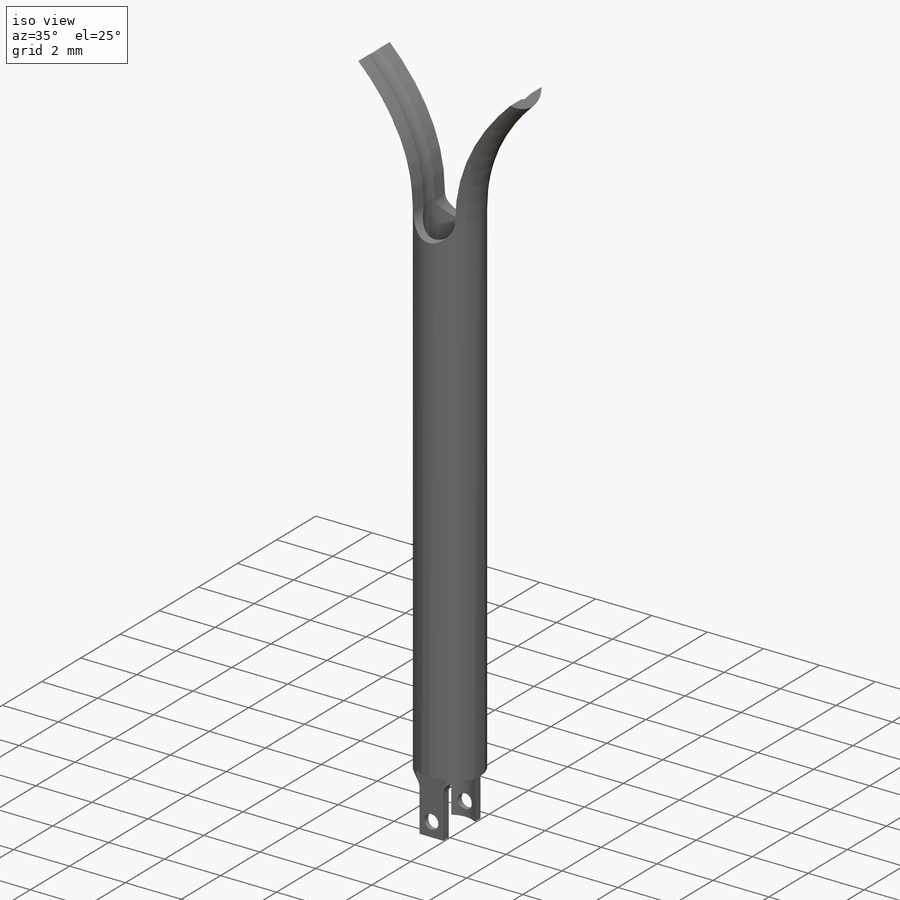
[diagram: iso view]
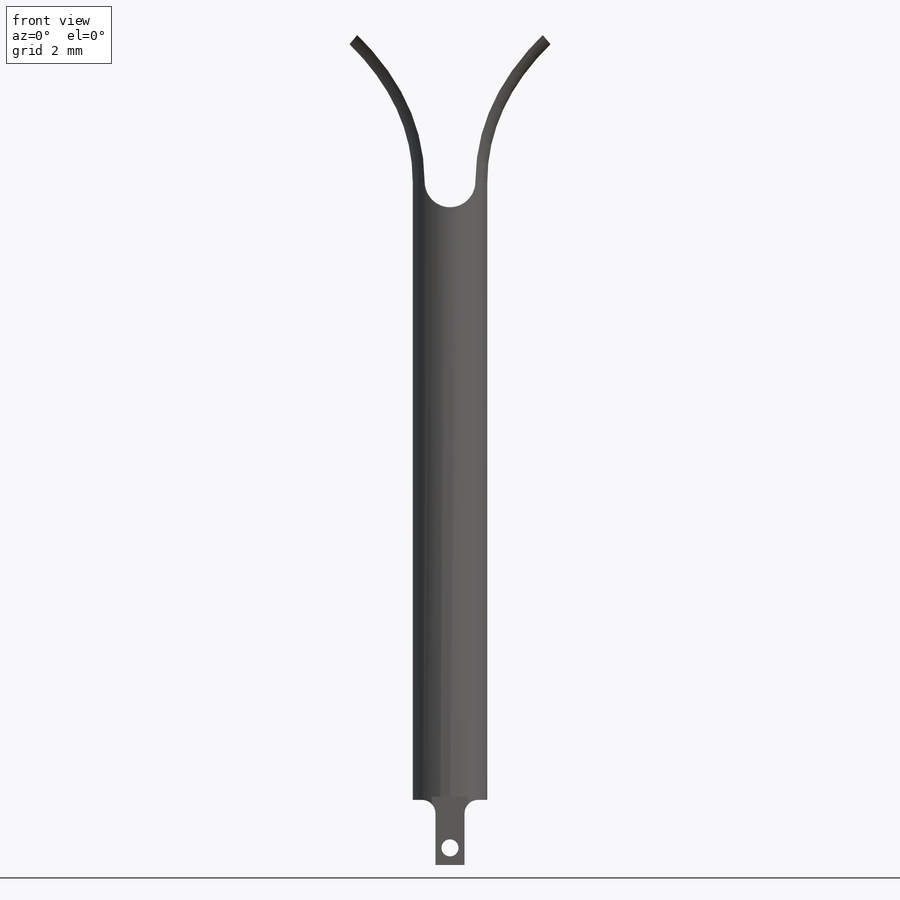
[diagram: front view]
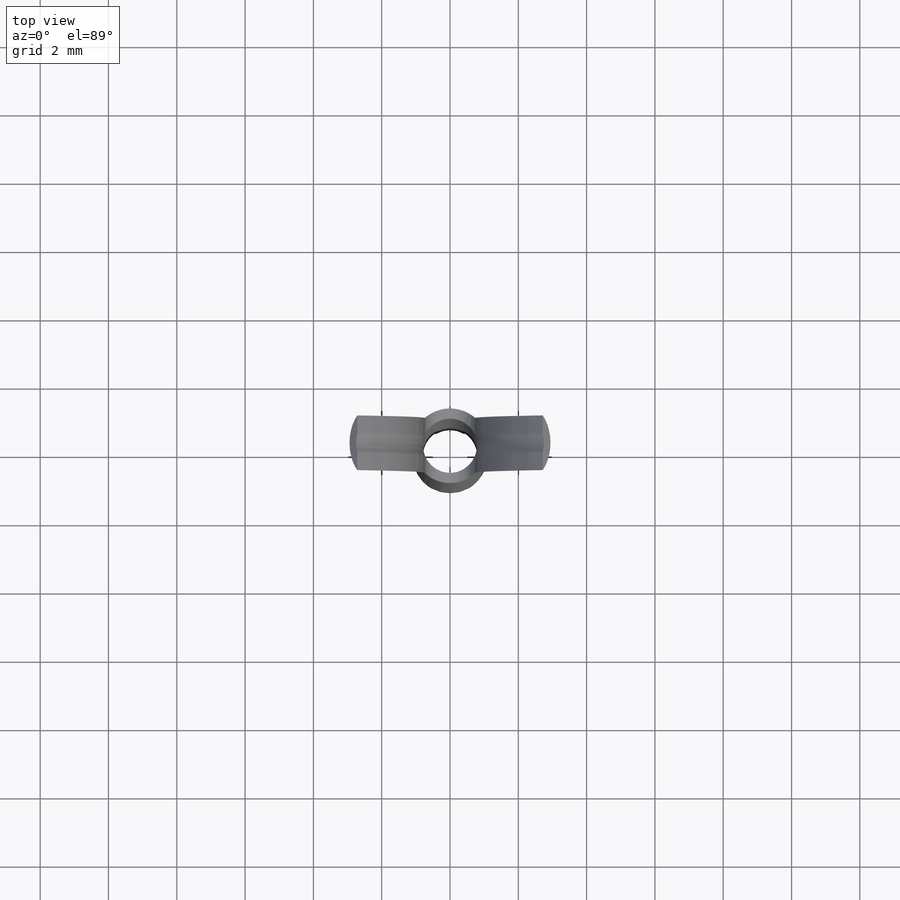
[diagram: top view]
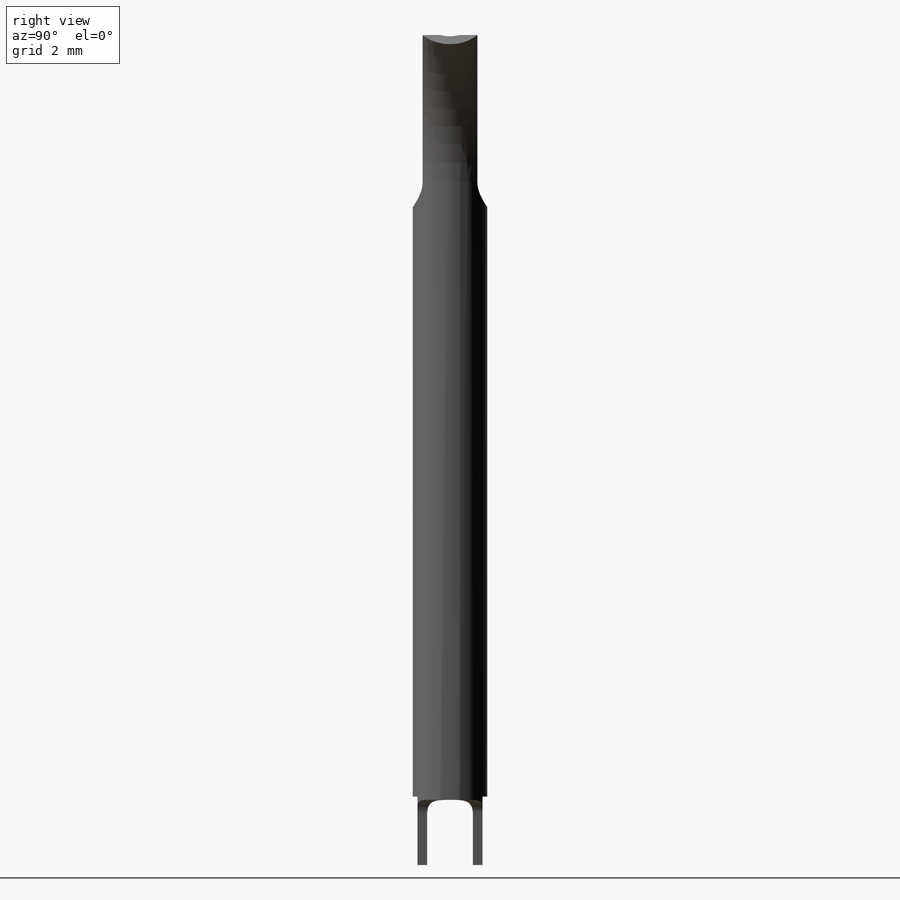
[diagram: right view]
SOLIDWORKS PART (.sldprt)
format: sldprt  version: not decoded by parser v0  size: 290,816 bytes
history: native  units: mm
features: sketch x10, cut_extrude x6, mirror x2, material x1, sweep x1, pattern_linear x1 (+13 scaffold rows collapsed)
feature tree (34):
  scaffold x13  (default folders/planes/origin — collapsed)
  material  "Material <not specified>"
  sketch  "Sketch1"  dims[c1.D1=2.1844mm c2.D1=20.0mm c2.D5=0.3mm c2.D6=1.0mm c2.D7=5.0mm]
  sketch  "Sketch2"
  sketch  "Sketch3"  dims[D1=0.35mm]
  sketch  "Sketch4"  dims[D1=5.0mm D2=3.0mm]
  sweep  "Sweep1"
  mirror  "Mirror1"
  sketch  "Sketch5"
  cut_extrude  "Cut-Extrude1"  Depth=20mm
  sketch  "Sketch6"  dims[D1=1.0mm D2=1.6mm D3=0.8mm]
  cut_extrude  "Cut-Extrude2"  Depth=20mm
  pattern_linear  "LPattern1"  Count1=4 Count2=1 Spacing1=1.2mm Spacing2=10mm
  sketch  "Sketch7"
  cut_extrude  "Cut-Extrude3"  Depth=1mm
  mirror  "Mirror2"
  sketch  "Sketch10"  dims[c1.D1=~1.220784mm c1.D2=~3.375391mm c2.D1=1.905mm c2.D2=~1.107527mm]
  cut_extrude  "Cut-Extrude5"  Depth=2mm
  sketch  "Sketch9"  dims[D1=0.5mm D2=0.5mm]
  cut_extrude  "Cut-Extrude4"  Depth=10mm
  sketch  "Sketch11"  dims[c1.D3=~0.396875mm c1.D1=~1.549501mm c1.D2=0.5mm c2.D3=~0.79375mm c2.D1=0.075mm c2.D4=~2.073285mm c3.D1=0.075mm]
  cut_extrude  "Cut-Extrude10"  Depth=1.5mm
decode coverage: 14 of 20 modeling features carry decoded parameters
note: ~ marks probable driven/reference dimensions
note: suppression state not decoded; provenance and decode notes live in map.json
